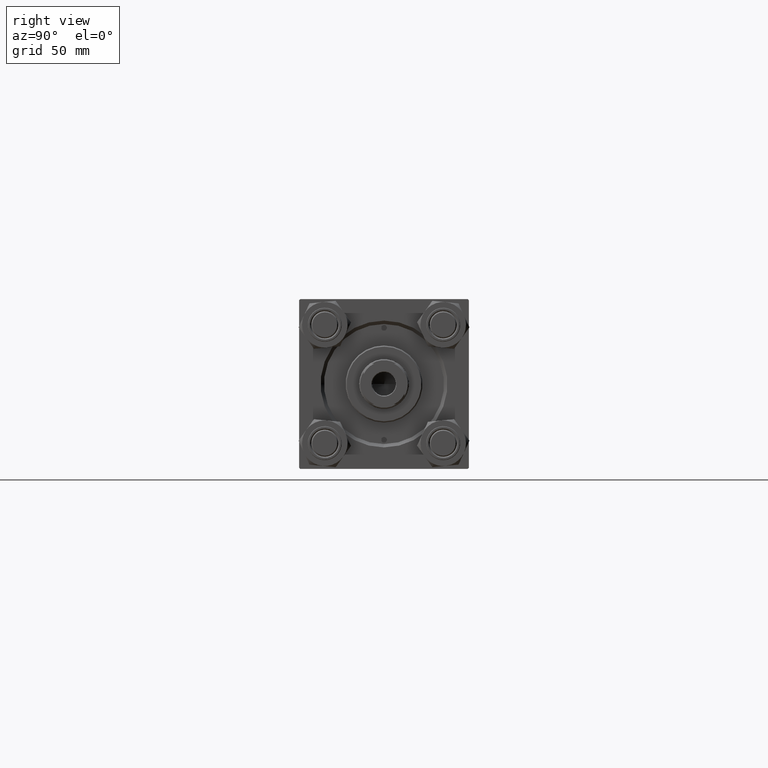
[diagram: clean part render]
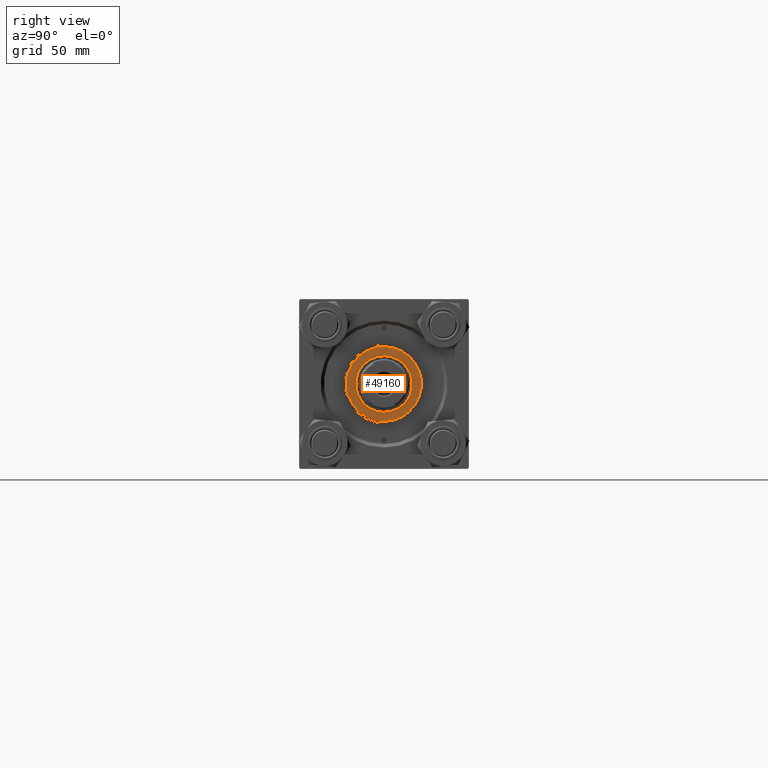
[diagram: same view with one face highlighted and labeled with its STEP entity id]
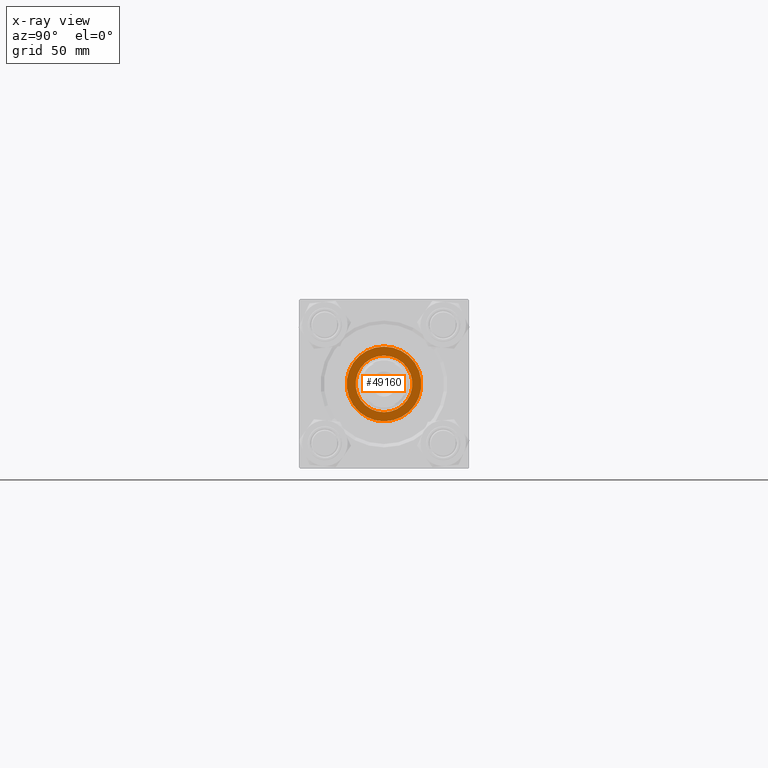
[diagram: x-ray of the same camera — body ghosted, the highlighted face saturated]
A machine part, right view. The second image highlights one B-rep face of the part: STEP entity #49160.
The next image is the same camera in x-ray: the body ghosted, the highlighted face saturated — about 0% of this face is hidden behind the body in this view.
In plain terms, the highlighted planar face has unit normal (1, 0, -0).
Its self-contained STEP definition (entity closure, byte-faithful):
#3310 = AXIS2_PLACEMENT_3D ( 'NONE', #15817, #41816, #11518 ) ;
#3402 = CARTESIAN_POINT ( 'NONE',  ( 0.000000000000000000, 0.000000000000000000, 37.69999999999999574 ) ) ;
#3589 = DIRECTION ( 'NONE',  ( 0.000000000000000000, 0.000000000000000000, 1.000000000000000000 ) ) ;
#7182 = CARTESIAN_POINT ( 'NONE',  ( 12.50000000000000000, 0.000000000000000000, 37.69999999999999574 ) ) ;
#7623 = FACE_BOUND ( 'NONE', #39850, .T. ) ;
#8295 = DIRECTION ( 'NONE',  ( 1.000000000000000000, 0.000000000000000000, 0.000000000000000000 ) ) ;
#10414 = CIRCLE ( 'NONE', #32175, 12.50000000000000000 ) ;
#11518 = DIRECTION ( 'NONE',  ( 1.000000000000000000, 0.000000000000000000, 0.000000000000000000 ) ) ;
#13211 = ORIENTED_EDGE ( 'NONE', *, *, #49896, .T. ) ;
#14731 = CARTESIAN_POINT ( 'NONE',  ( 0.000000000000000000, 0.000000000000000000, 37.69999999999999574 ) ) ;
#14946 = CARTESIAN_POINT ( 'NONE',  ( -12.50000000000000000, 1.530808498934191521E-15, 37.69999999999999574 ) ) ;
#14986 = FACE_OUTER_BOUND ( 'NONE', #26239, .T. ) ;
#15522 = VERTEX_POINT ( 'NONE', #14946 ) ;
#15665 = CARTESIAN_POINT ( 'NONE',  ( -16.50000000000000000, 0.000000000000000000, 37.69999999999999574 ) ) ;
#15817 = CARTESIAN_POINT ( 'NONE',  ( 0.000000000000000000, 0.000000000000000000, 37.69999999999999574 ) ) ;
#16104 = DIRECTION ( 'NONE',  ( 0.000000000000000000, 0.000000000000000000, 1.000000000000000000 ) ) ;
#16935 = CARTESIAN_POINT ( 'NONE',  ( 16.50000000000000000, 2.051283388571816887E-15, 37.69999999999999574 ) ) ;
#19613 = EDGE_CURVE ( 'NONE', #24283, #15522, #10414, .T. ) ;
#20854 = ORIENTED_EDGE ( 'NONE', *, *, #19613, .F. ) ;
#23681 = CARTESIAN_POINT ( 'NONE',  ( 0.000000000000000000, 0.000000000000000000, 37.69999999999999574 ) ) ;
#24283 = VERTEX_POINT ( 'NONE', #7182 ) ;
#26239 = EDGE_LOOP ( 'NONE', ( #13211, #34361 ) ) ;
#26588 = CARTESIAN_POINT ( 'NONE',  ( 0.000000000000000000, 0.000000000000000000, 37.69999999999999574 ) ) ;
#26896 = DIRECTION ( 'NONE',  ( 1.000000000000000000, 0.000000000000000000, 0.000000000000000000 ) ) ;
#27335 = DIRECTION ( 'NONE',  ( 1.000000000000000000, 0.000000000000000000, -0.000000000000000000 ) ) ;
#27847 = CIRCLE ( 'NONE', #28650, 16.50000000000000000 ) ;
#28650 = AXIS2_PLACEMENT_3D ( 'NONE', #23681, #16104, #47617 ) ;
#30064 = CIRCLE ( 'NONE', #30858, 16.50000000000000000 ) ;
#30735 = EDGE_CURVE ( 'NONE', #47399, #36355, #30064, .T. ) ;
#30858 = AXIS2_PLACEMENT_3D ( 'NONE', #3402, #34709, #26896 ) ;
#32175 = AXIS2_PLACEMENT_3D ( 'NONE', #14731, #35584, #8295 ) ;
#34361 = ORIENTED_EDGE ( 'NONE', *, *, #30735, .T. ) ;
#34709 = DIRECTION ( 'NONE',  ( 0.000000000000000000, 0.000000000000000000, 1.000000000000000000 ) ) ;
#34751 = CIRCLE ( 'NONE', #3310, 12.50000000000000000 ) ;
#35584 = DIRECTION ( 'NONE',  ( 0.000000000000000000, 0.000000000000000000, 1.000000000000000000 ) ) ;
#36355 = VERTEX_POINT ( 'NONE', #15665 ) ;
#38184 = PLANE ( 'NONE',  #49561 ) ;
#38694 = EDGE_CURVE ( 'NONE', #15522, #24283, #34751, .T. ) ;
#39850 = EDGE_LOOP ( 'NONE', ( #20854, #42908 ) ) ;
#41816 = DIRECTION ( 'NONE',  ( 0.000000000000000000, 0.000000000000000000, 1.000000000000000000 ) ) ;
#42908 = ORIENTED_EDGE ( 'NONE', *, *, #38694, .F. ) ;
#47399 = VERTEX_POINT ( 'NONE', #16935 ) ;
#47617 = DIRECTION ( 'NONE',  ( 1.000000000000000000, 0.000000000000000000, 0.000000000000000000 ) ) ;
#49160 = ADVANCED_FACE ( 'NONE', ( #7623, #14986 ), #38184, .T. ) ;
#49561 = AXIS2_PLACEMENT_3D ( 'NONE', #26588, #3589, #27335 ) ;
#49896 = EDGE_CURVE ( 'NONE', #36355, #47399, #27847, .T. ) ;